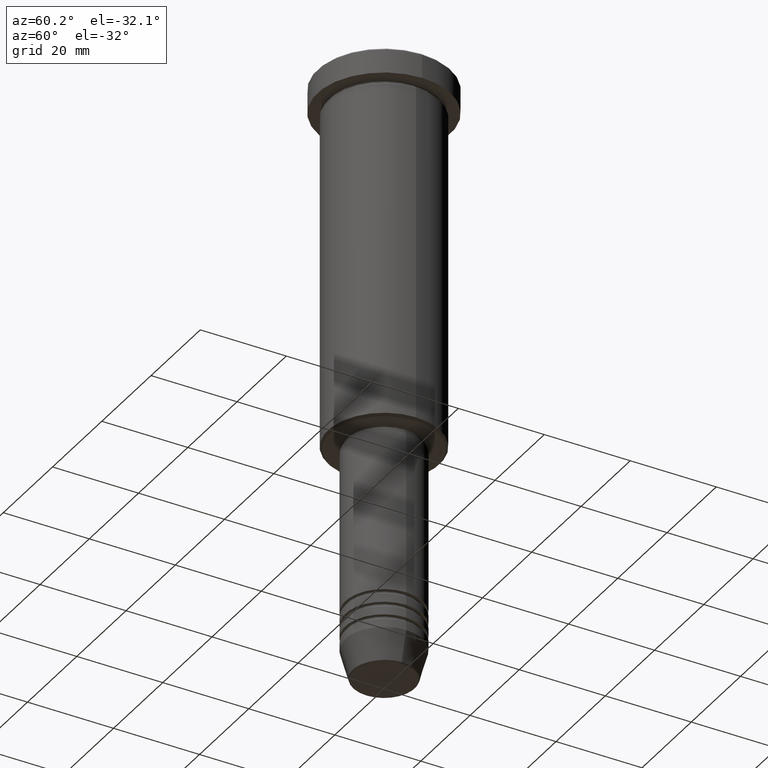
[diagram: clean part render]
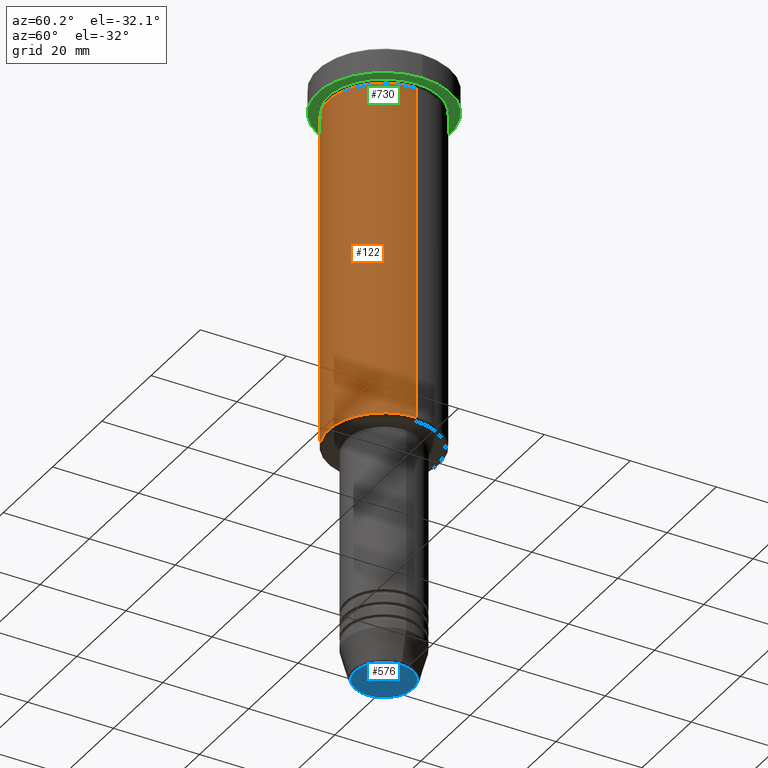
[diagram: same view with three faces highlighted in distinct colors, each labeled with its STEP entity id]
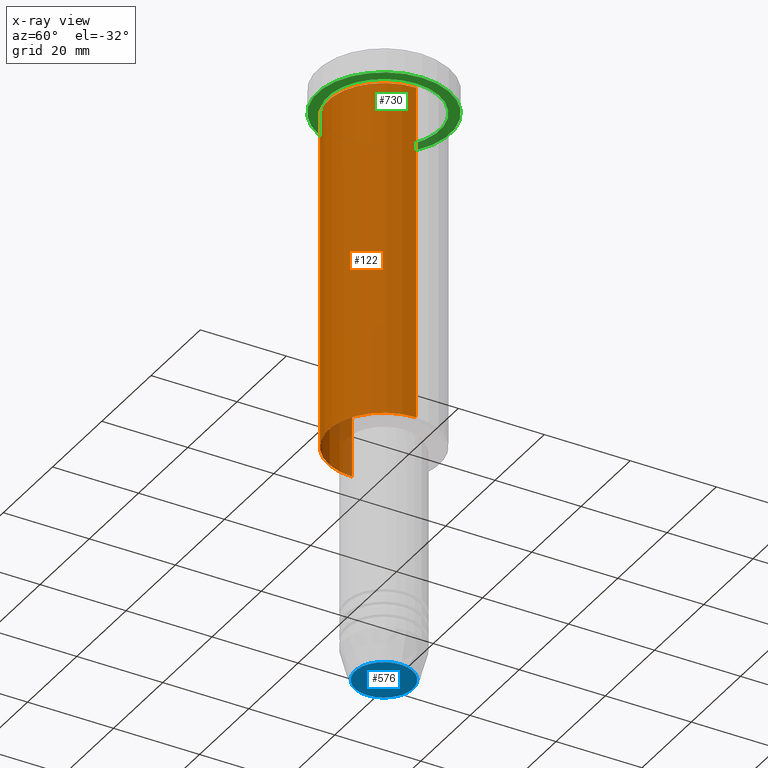
[diagram: x-ray of the same camera — body ghosted, the three highlighted faces saturated]
A machine part, auxiliary view with three faces highlighted in distinct colors.
The next image is the same camera in x-ray (body ghosted, the three faces saturated) — at least one of them is partly hidden behind the body in this view.
Their STEP definitions:

[orange] entity #122 — the highlighted cylindrical surface (partial cylindrical patch) has radius 13 mm, axis along (-0, -0, 1).
#47 = CARTESIAN_POINT ( 'NONE',  ( 13.00000000000000000, 0.000000000000000000, -85.49999999999997158 ) ) ;
#80 = EDGE_CURVE ( 'NONE', #1168, #138, #338, .T. ) ;
#84 = AXIS2_PLACEMENT_3D ( 'NONE', #1149, #450, #1166 ) ;
#95 = DIRECTION ( 'NONE',  ( 1.000000000000000000, 0.000000000000000000, 0.000000000000000000 ) ) ;
#111 = CARTESIAN_POINT ( 'NONE',  ( 13.00000000000000000, 0.000000000000000000, -6.999999999999995559 ) ) ;
#122 = ADVANCED_FACE ( 'NONE', ( #599 ), #694, .T. ) ;
#138 = VERTEX_POINT ( 'NONE', #111 ) ;
#142 = EDGE_CURVE ( 'NONE', #281, #138, #1048, .T. ) ;
#154 = CARTESIAN_POINT ( 'NONE',  ( 0.000000000000000000, 0.000000000000000000, 0.000000000000000000 ) ) ;
#281 = VERTEX_POINT ( 'NONE', #777 ) ;
#306 = VERTEX_POINT ( 'NONE', #884 ) ;
#310 = DIRECTION ( 'NONE',  ( -0.000000000000000000, -0.000000000000000000, 1.000000000000000000 ) ) ;
#329 = AXIS2_PLACEMENT_3D ( 'NONE', #464, #1182, #95 ) ;
#338 = LINE ( 'NONE', #904, #935 ) ;
#450 = DIRECTION ( 'NONE',  ( -0.000000000000000000, -0.000000000000000000, 1.000000000000000000 ) ) ;
#464 = CARTESIAN_POINT ( 'NONE',  ( 0.000000000000000000, 0.000000000000000000, -6.999999999999995559 ) ) ;
#495 = LINE ( 'NONE', #855, #1082 ) ;
#557 = EDGE_LOOP ( 'NONE', ( #724, #707, #1114, #663 ) ) ;
#599 = FACE_OUTER_BOUND ( 'NONE', #557, .T. ) ;
#625 = DIRECTION ( 'NONE',  ( 1.000000000000000000, 0.000000000000000000, 0.000000000000000000 ) ) ;
#644 = EDGE_CURVE ( 'NONE', #306, #281, #495, .T. ) ;
#663 = ORIENTED_EDGE ( 'NONE', *, *, #142, .F. ) ;
#694 = CYLINDRICAL_SURFACE ( 'NONE', #875, 13.00000000000000000 ) ;
#707 = ORIENTED_EDGE ( 'NONE', *, *, #825, .T. ) ;
#724 = ORIENTED_EDGE ( 'NONE', *, *, #644, .F. ) ;
#777 = CARTESIAN_POINT ( 'NONE',  ( -13.00000000000000000, 1.592040838891559095E-15, -6.999999999999995559 ) ) ;
#797 = DIRECTION ( 'NONE',  ( -0.000000000000000000, -0.000000000000000000, 1.000000000000000000 ) ) ;
#825 = EDGE_CURVE ( 'NONE', #306, #1168, #970, .T. ) ;
#855 = CARTESIAN_POINT ( 'NONE',  ( -13.00000000000000000, 1.592040838891559095E-15, 0.000000000000000000 ) ) ;
#875 = AXIS2_PLACEMENT_3D ( 'NONE', #154, #1147, #625 ) ;
#884 = CARTESIAN_POINT ( 'NONE',  ( -13.00000000000000000, 1.592040838891559095E-15, -85.49999999999997158 ) ) ;
#904 = CARTESIAN_POINT ( 'NONE',  ( 13.00000000000000000, 0.000000000000000000, 0.000000000000000000 ) ) ;
#935 = VECTOR ( 'NONE', #797, 1000.000000000000000 ) ;
#970 = CIRCLE ( 'NONE', #84, 13.00000000000000000 ) ;
#1048 = CIRCLE ( 'NONE', #329, 13.00000000000000000 ) ;
#1082 = VECTOR ( 'NONE', #310, 1000.000000000000000 ) ;
#1114 = ORIENTED_EDGE ( 'NONE', *, *, #80, .T. ) ;
#1147 = DIRECTION ( 'NONE',  ( -0.000000000000000000, -0.000000000000000000, 1.000000000000000000 ) ) ;
#1149 = CARTESIAN_POINT ( 'NONE',  ( 0.000000000000000000, 0.000000000000000000, -85.49999999999997158 ) ) ;
#1166 = DIRECTION ( 'NONE',  ( -1.000000000000000000, 0.000000000000000000, 0.000000000000000000 ) ) ;
#1168 = VERTEX_POINT ( 'NONE', #47 ) ;
#1182 = DIRECTION ( 'NONE',  ( -0.000000000000000000, -0.000000000000000000, 1.000000000000000000 ) ) ;

[blue] entity #576 — the highlighted planar face has unit normal (0, -0, 1).
#4 = FACE_OUTER_BOUND ( 'NONE', #267, .T. ) ;
#41 = EDGE_CURVE ( 'NONE', #76, #882, #407, .T. ) ;
#76 = VERTEX_POINT ( 'NONE', #509 ) ;
#90 = CARTESIAN_POINT ( 'NONE',  ( 0.000000000000000000, 0.000000000000000000, -141.0000000000000000 ) ) ;
#117 = DIRECTION ( 'NONE',  ( 1.000000000000000000, 0.000000000000000000, 0.000000000000000000 ) ) ;
#120 = ORIENTED_EDGE ( 'NONE', *, *, #184, .T. ) ;
#131 = AXIS2_PLACEMENT_3D ( 'NONE', #659, #1106, #927 ) ;
#184 = EDGE_CURVE ( 'NONE', #882, #76, #287, .T. ) ;
#194 = PLANE ( 'NONE',  #719 ) ;
#267 = EDGE_LOOP ( 'NONE', ( #120, #809 ) ) ;
#287 = CIRCLE ( 'NONE', #348, 6.740692158992658278 ) ;
#305 = DIRECTION ( 'NONE',  ( 0.000000000000000000, -0.000000000000000000, 1.000000000000000000 ) ) ;
#348 = AXIS2_PLACEMENT_3D ( 'NONE', #637, #1096, #117 ) ;
#407 = CIRCLE ( 'NONE', #131, 6.740692158992658278 ) ;
#509 = CARTESIAN_POINT ( 'NONE',  ( -6.740692158992658278, 8.550696569392685681E-16, -141.0000000000000000 ) ) ;
#576 = ADVANCED_FACE ( 'NONE', ( #4 ), #194, .F. ) ;
#637 = CARTESIAN_POINT ( 'NONE',  ( 0.000000000000000000, 0.000000000000000000, -141.0000000000000000 ) ) ;
#659 = CARTESIAN_POINT ( 'NONE',  ( 0.000000000000000000, 0.000000000000000000, -141.0000000000000000 ) ) ;
#719 = AXIS2_PLACEMENT_3D ( 'NONE', #90, #305, #1014 ) ;
#809 = ORIENTED_EDGE ( 'NONE', *, *, #41, .T. ) ;
#882 = VERTEX_POINT ( 'NONE', #919 ) ;
#919 = CARTESIAN_POINT ( 'NONE',  ( 6.740692158992658278, 0.000000000000000000, -141.0000000000000000 ) ) ;
#927 = DIRECTION ( 'NONE',  ( 1.000000000000000000, 0.000000000000000000, 0.000000000000000000 ) ) ;
#1014 = DIRECTION ( 'NONE',  ( 1.000000000000000000, 0.000000000000000000, 0.000000000000000000 ) ) ;
#1096 = DIRECTION ( 'NONE',  ( 0.000000000000000000, 0.000000000000000000, -1.000000000000000000 ) ) ;
#1106 = DIRECTION ( 'NONE',  ( 0.000000000000000000, 0.000000000000000000, -1.000000000000000000 ) ) ;

[green] entity #730 — the highlighted planar face has unit normal (0, 0, -1).
#17 = EDGE_CURVE ( 'NONE', #466, #837, #108, .T. ) ;
#51 = AXIS2_PLACEMENT_3D ( 'NONE', #1112, #193, #93 ) ;
#63 = AXIS2_PLACEMENT_3D ( 'NONE', #816, #101, #566 ) ;
#66 = CARTESIAN_POINT ( 'NONE',  ( -13.00000000000000000, 0.000000000000000000, -5.999999999999994671 ) ) ;
#77 = ORIENTED_EDGE ( 'NONE', *, *, #433, .F. ) ;
#93 = DIRECTION ( 'NONE',  ( -1.000000000000000000, 0.000000000000000000, 0.000000000000000000 ) ) ;
#101 = DIRECTION ( 'NONE',  ( -0.000000000000000000, -0.000000000000000000, 1.000000000000000000 ) ) ;
#108 = CIRCLE ( 'NONE', #51, 13.00000000000000000 ) ;
#115 = DIRECTION ( 'NONE',  ( -0.000000000000000000, -0.000000000000000000, 1.000000000000000000 ) ) ;
#193 = DIRECTION ( 'NONE',  ( -0.000000000000000000, -0.000000000000000000, 1.000000000000000000 ) ) ;
#199 = DIRECTION ( 'NONE',  ( 1.000000000000000000, 0.000000000000000000, 0.000000000000000000 ) ) ;
#222 = DIRECTION ( 'NONE',  ( 0.000000000000000000, 0.000000000000000000, -1.000000000000000000 ) ) ;
#288 = EDGE_CURVE ( 'NONE', #837, #466, #359, .T. ) ;
#294 = ORIENTED_EDGE ( 'NONE', *, *, #17, .T. ) ;
#324 = AXIS2_PLACEMENT_3D ( 'NONE', #335, #609, #753 ) ;
#335 = CARTESIAN_POINT ( 'NONE',  ( 0.000000000000000000, 0.000000000000000000, -5.999999999999995559 ) ) ;
#359 = CIRCLE ( 'NONE', #324, 13.00000000000000000 ) ;
#433 = EDGE_CURVE ( 'NONE', #949, #670, #987, .T. ) ;
#466 = VERTEX_POINT ( 'NONE', #926 ) ;
#470 = EDGE_CURVE ( 'NONE', #670, #949, #788, .T. ) ;
#474 = AXIS2_PLACEMENT_3D ( 'NONE', #687, #222, #584 ) ;
#501 = CARTESIAN_POINT ( 'NONE',  ( -15.50000000000000000, 1.898202538678397557E-15, -5.999999999999995559 ) ) ;
#547 = ORIENTED_EDGE ( 'NONE', *, *, #470, .F. ) ;
#566 = DIRECTION ( 'NONE',  ( 1.000000000000000000, 0.000000000000000000, 0.000000000000000000 ) ) ;
#583 = CARTESIAN_POINT ( 'NONE',  ( 0.000000000000000000, 0.000000000000000000, -5.999999999999995559 ) ) ;
#584 = DIRECTION ( 'NONE',  ( -1.000000000000000000, 0.000000000000000000, -0.000000000000000000 ) ) ;
#587 = CARTESIAN_POINT ( 'NONE',  ( 15.50000000000000000, 0.000000000000000000, -5.999999999999995559 ) ) ;
#609 = DIRECTION ( 'NONE',  ( -0.000000000000000000, -0.000000000000000000, 1.000000000000000000 ) ) ;
#670 = VERTEX_POINT ( 'NONE', #501 ) ;
#673 = FACE_OUTER_BOUND ( 'NONE', #800, .T. ) ;
#687 = CARTESIAN_POINT ( 'NONE',  ( 0.000000000000000000, 15.50000000000000000, -5.999999999999995559 ) ) ;
#730 = ADVANCED_FACE ( 'NONE', ( #1134, #673 ), #1033, .T. ) ;
#746 = ORIENTED_EDGE ( 'NONE', *, *, #288, .T. ) ;
#753 = DIRECTION ( 'NONE',  ( -1.000000000000000000, 0.000000000000000000, 0.000000000000000000 ) ) ;
#768 = EDGE_LOOP ( 'NONE', ( #746, #294 ) ) ;
#788 = CIRCLE ( 'NONE', #63, 15.50000000000000000 ) ;
#800 = EDGE_LOOP ( 'NONE', ( #77, #547 ) ) ;
#816 = CARTESIAN_POINT ( 'NONE',  ( 0.000000000000000000, 0.000000000000000000, -5.999999999999995559 ) ) ;
#837 = VERTEX_POINT ( 'NONE', #66 ) ;
#926 = CARTESIAN_POINT ( 'NONE',  ( 13.00000000000000000, 1.592040838891559095E-15, -5.999999999999994671 ) ) ;
#949 = VERTEX_POINT ( 'NONE', #587 ) ;
#987 = CIRCLE ( 'NONE', #1081, 15.50000000000000000 ) ;
#1033 = PLANE ( 'NONE',  #474 ) ;
#1081 = AXIS2_PLACEMENT_3D ( 'NONE', #583, #115, #199 ) ;
#1112 = CARTESIAN_POINT ( 'NONE',  ( 0.000000000000000000, 0.000000000000000000, -5.999999999999995559 ) ) ;
#1134 = FACE_BOUND ( 'NONE', #768, .T. ) ;